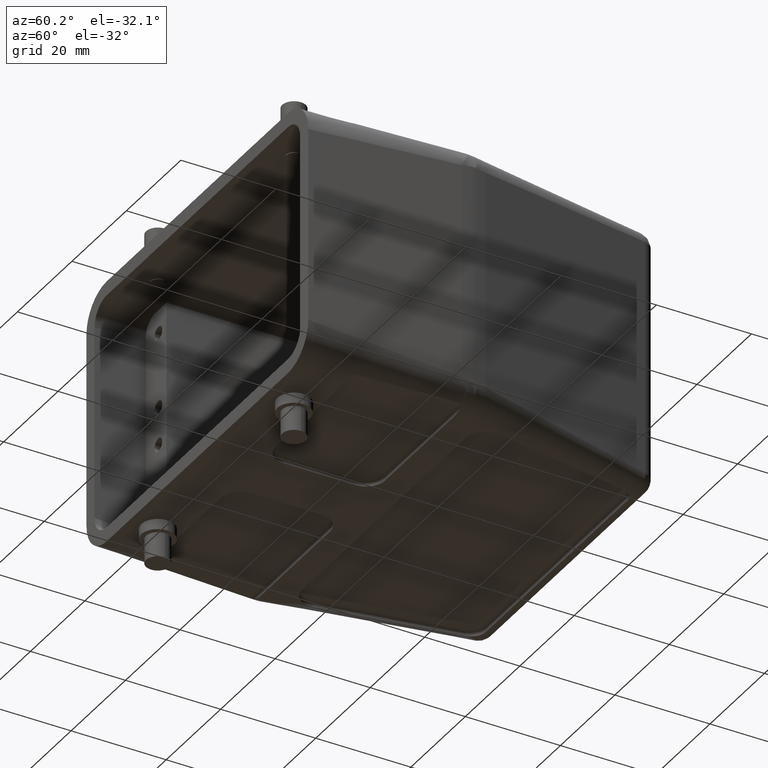
[diagram: clean part render]
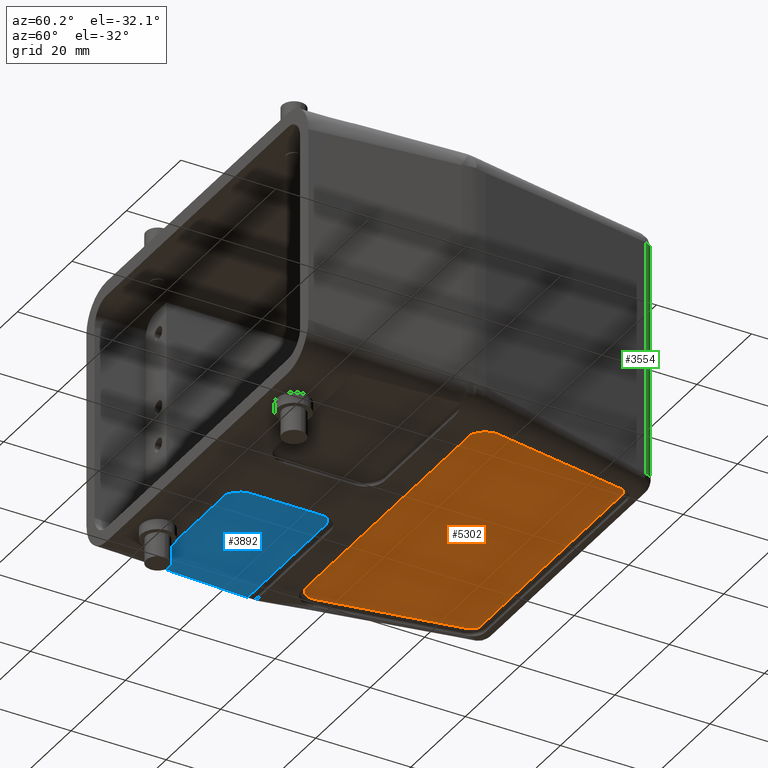
[diagram: same view with three faces highlighted in distinct colors, each labeled with its STEP entity id]
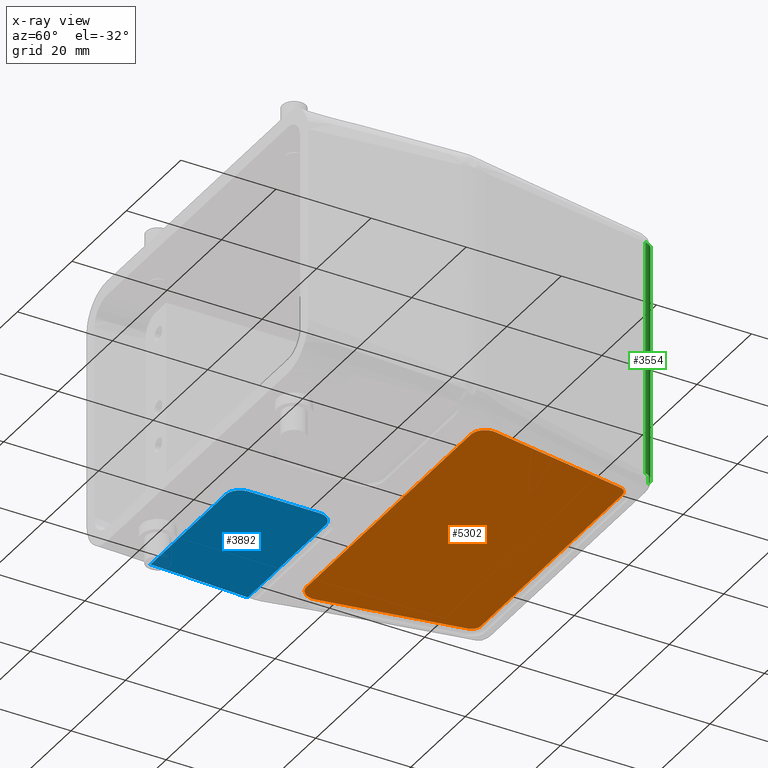
[diagram: x-ray of the same camera — body ghosted, the three highlighted faces saturated]
A machine part, auxiliary view with three faces highlighted in distinct colors.
The next image is the same camera in x-ray (body ghosted, the three faces saturated) — at least one of them is partly hidden behind the body in this view.
Their STEP definitions:

[orange] entity #5302 — the highlighted planar face has unit normal (0, 0, 1).
#38=DIRECTION('',(-1.E0,0.E0,0.E0));
#39=VECTOR('',#38,5.194844557922E1);
#40=CARTESIAN_POINT('',(2.597422278961E1,3.525E1,-2.7E1));
#41=LINE('',#40,#39);
#1903=CARTESIAN_POINT('',(2.597422278961E1,3.325E1,-2.7E1));
#1904=DIRECTION('',(0.E0,0.E0,1.E0));
#1905=DIRECTION('',(9.846114241348E-1,1.747579567950E-1,0.E0));
#1906=AXIS2_PLACEMENT_3D('',#1903,#1904,#1905);
#1908=CARTESIAN_POINT('',(-2.597422278961E1,3.325E1,-2.7E1));
#1909=DIRECTION('',(0.E0,0.E0,1.E0));
#1910=DIRECTION('',(0.E0,1.E0,0.E0));
#1911=AXIS2_PLACEMENT_3D('',#1908,#1909,#1910);
#1913=DIRECTION('',(-1.747579567951E-1,-9.846114241348E-1,0.E0));
#1914=VECTOR('',#1913,2.952966147914E1);
#1915=CARTESIAN_POINT('',(-2.794344563781E1,3.359951591357E1,
-2.699999999997E1));
#1916=LINE('',#1915,#1914);
#1917=CARTESIAN_POINT('',(-3.015015467035E1,4.E0,-2.7E1));
#1918=DIRECTION('',(0.E0,0.E0,1.E0));
#1919=DIRECTION('',(-9.846114241353E-1,1.747579567924E-1,0.E0));
#1920=AXIS2_PLACEMENT_3D('',#1917,#1918,#1919);
#1922=CARTESIAN_POINT('',(3.015015467035E1,4.E0,-2.7E1));
#1923=DIRECTION('',(0.E0,0.E0,1.E0));
#1924=DIRECTION('',(0.E0,-1.E0,0.E0));
#1925=AXIS2_PLACEMENT_3D('',#1922,#1923,#1924);
#1927=DIRECTION('',(-1.747579567916E-1,9.846114241354E-1,0.E0));
#1928=VECTOR('',#1927,2.952966147914E1);
#1929=CARTESIAN_POINT('',(3.310398894273E1,4.524273870373E0,-2.699999999998E1));
#1930=LINE('',#1929,#1928);
#1955=DIRECTION('',(1.E0,0.E0,0.E0));
#1956=VECTOR('',#1955,6.030030934070E1);
#1957=CARTESIAN_POINT('',(-3.015015467035E1,1.E0,-2.7E1));
#1958=LINE('',#1957,#1956);
#2332=CARTESIAN_POINT('',(2.794344563788E1,3.359951591359E1,-2.7E1));
#2333=CARTESIAN_POINT('',(2.597422278961E1,3.525E1,-2.7E1));
#2334=VERTEX_POINT('',#2332);
#2335=VERTEX_POINT('',#2333);
#2336=CARTESIAN_POINT('',(3.310398894273E1,4.524273870373E0,-2.699999999998E1));
#2337=VERTEX_POINT('',#2336);
#2338=CARTESIAN_POINT('',(3.015015467035E1,9.999999999990E-1,-2.7E1));
#2339=VERTEX_POINT('',#2338);
#2340=CARTESIAN_POINT('',(-3.015015467035E1,1.E0,-2.7E1));
#2341=VERTEX_POINT('',#2340);
#2342=CARTESIAN_POINT('',(-3.310398894276E1,4.524273870377E0,-2.7E1));
#2343=VERTEX_POINT('',#2342);
#2344=CARTESIAN_POINT('',(-2.794344563781E1,3.359951591357E1,
-2.699999999997E1));
#2345=VERTEX_POINT('',#2344);
#2346=CARTESIAN_POINT('',(-2.597422278961E1,3.525E1,-2.7E1));
#2347=VERTEX_POINT('',#2346);
#5283=CARTESIAN_POINT('',(0.E0,2.615E1,-2.7E1));
#5284=DIRECTION('',(0.E0,0.E0,1.E0));
#5285=DIRECTION('',(-1.E0,0.E0,0.E0));
#5286=AXIS2_PLACEMENT_3D('',#5283,#5284,#5285);
#5287=PLANE('',#5286);
#5288=ORIENTED_EDGE('',*,*,#2566,.T.);
#5289=ORIENTED_EDGE('',*,*,#2581,.T.);
#5291=ORIENTED_EDGE('',*,*,#5290,.T.);
#5293=ORIENTED_EDGE('',*,*,#5292,.T.);
#5295=ORIENTED_EDGE('',*,*,#5294,.T.);
#5297=ORIENTED_EDGE('',*,*,#5296,.T.);
#5298=ORIENTED_EDGE('',*,*,#5276,.T.);
#5299=ORIENTED_EDGE('',*,*,#2551,.T.);
#5300=EDGE_LOOP('',(#5288,#5289,#5291,#5293,#5295,#5297,#5298,#5299));
#5301=FACE_OUTER_BOUND('',#5300,.F.);
#5302=ADVANCED_FACE('',(#5301),#5287,.F.);
#1907=CIRCLE('',#1906,2.000000000001E0);
#1912=CIRCLE('',#1911,2.000000000003E0);
#1921=CIRCLE('',#1920,3.E0);
#1926=CIRCLE('',#1925,3.000000000001E0);
#2551=EDGE_CURVE('',#2337,#2334,#1930,.T.);
#2566=EDGE_CURVE('',#2334,#2335,#1907,.T.);
#2581=EDGE_CURVE('',#2335,#2347,#41,.T.);
#5276=EDGE_CURVE('',#2339,#2337,#1926,.T.);
#5290=EDGE_CURVE('',#2347,#2345,#1912,.T.);
#5292=EDGE_CURVE('',#2345,#2343,#1916,.T.);
#5294=EDGE_CURVE('',#2343,#2341,#1921,.T.);
#5296=EDGE_CURVE('',#2341,#2339,#1958,.T.);

[blue] entity #3892 — the highlighted planar face has unit normal (0, 0, 1).
#1031=CARTESIAN_POINT('',(-3.864350209809E1,-6.550000000001E0,
-2.699999999998E1));
#1032=CARTESIAN_POINT('',(-3.853356949915E1,-8.840790215465E0,
-2.699999999998E1));
#1033=CARTESIAN_POINT('',(-3.830952670427E1,-1.345072676245E1,
-2.700000000001E1));
#1034=CARTESIAN_POINT('',(-3.796179668021E1,-2.045135043919E1,
-2.700000000001E1));
#1035=CARTESIAN_POINT('',(-3.772273925070E1,-2.517438693915E1,
-2.699999999998E1));
#1036=CARTESIAN_POINT('',(-3.760149286989E1,-2.755E1,-2.699999999998E1));
#1038=CARTESIAN_POINT('',(-1.E1,-2.455E1,-2.7E1));
#1039=DIRECTION('',(0.E0,0.E0,1.E0));
#1040=DIRECTION('',(0.E0,-1.E0,0.E0));
#1041=AXIS2_PLACEMENT_3D('',#1038,#1039,#1040);
#1043=CARTESIAN_POINT('',(-1.E1,-9.55E0,-2.7E1));
#1044=DIRECTION('',(0.E0,0.E0,1.E0));
#1045=DIRECTION('',(1.E0,0.E0,0.E0));
#1046=AXIS2_PLACEMENT_3D('',#1043,#1044,#1045);
#1048=DIRECTION('',(-1.E0,-4.207788947754E-14,6.965642661926E-13));
#1049=VECTOR('',#1048,2.864350209809E1);
#1050=CARTESIAN_POINT('',(-1.E1,-6.55E0,-2.7E1));
#1051=LINE('',#1050,#1049);
#1079=DIRECTION('',(-1.206738412899E-13,1.E0,0.E0));
#1080=VECTOR('',#1079,1.5E1);
#1081=CARTESIAN_POINT('',(-6.999999999998E0,-2.455E1,-2.7E1));
#1082=LINE('',#1081,#1080);
#1101=DIRECTION('',(1.E0,2.020818403559E-14,-8.791203628220E-13));
#1102=VECTOR('',#1101,2.760149286989E1);
#1103=CARTESIAN_POINT('',(-3.760149286989E1,-2.755E1,-2.699999999998E1));
#1104=LINE('',#1103,#1102);
#2320=CARTESIAN_POINT('',(-1.E1,-6.55E0,-2.7E1));
#2321=CARTESIAN_POINT('',(-3.864350209809E1,-6.550000000001E0,
-2.699999999998E1));
#2322=VERTEX_POINT('',#2320);
#2323=VERTEX_POINT('',#2321);
#2324=CARTESIAN_POINT('',(-7.000000000001E0,-9.55E0,-2.7E1));
#2325=VERTEX_POINT('',#2324);
#2326=CARTESIAN_POINT('',(-6.999999999998E0,-2.455E1,-2.7E1));
#2327=VERTEX_POINT('',#2326);
#2328=CARTESIAN_POINT('',(-1.E1,-2.755E1,-2.7E1));
#2329=VERTEX_POINT('',#2328);
#2330=CARTESIAN_POINT('',(-3.760149286989E1,-2.755E1,-2.699999999998E1));
#2331=VERTEX_POINT('',#2330);
#3874=CARTESIAN_POINT('',(-2.282175104902E1,-1.705E1,-2.7E1));
#3875=DIRECTION('',(0.E0,0.E0,1.E0));
#3876=DIRECTION('',(1.E0,0.E0,0.E0));
#3877=AXIS2_PLACEMENT_3D('',#3874,#3875,#3876);
#3878=PLANE('',#3877);
#3880=ORIENTED_EDGE('',*,*,#3879,.T.);
#3881=ORIENTED_EDGE('',*,*,#3859,.T.);
#3883=ORIENTED_EDGE('',*,*,#3882,.T.);
#3885=ORIENTED_EDGE('',*,*,#3884,.T.);
#3887=ORIENTED_EDGE('',*,*,#3886,.T.);
#3889=ORIENTED_EDGE('',*,*,#3888,.T.);
#3890=EDGE_LOOP('',(#3880,#3881,#3883,#3885,#3887,#3889));
#3891=FACE_OUTER_BOUND('',#3890,.F.);
#3892=ADVANCED_FACE('',(#3891),#3878,.F.);
#1037=B_SPLINE_CURVE_WITH_KNOTS('',3,(#1031,#1032,#1033,#1034,#1035,#1036),
.UNSPECIFIED.,.F.,.F.,(4,1,1,4),(0.E0,3.333333333333E-1,6.666666666667E-1,1.E0),
.UNSPECIFIED.);
#1042=CIRCLE('',#1041,3.000000000005E0);
#1047=CIRCLE('',#1046,2.999999999999E0);
#3859=EDGE_CURVE('',#2323,#2331,#1037,.T.);
#3879=EDGE_CURVE('',#2322,#2323,#1051,.T.);
#3882=EDGE_CURVE('',#2331,#2329,#1104,.T.);
#3884=EDGE_CURVE('',#2329,#2327,#1042,.T.);
#3886=EDGE_CURVE('',#2327,#2325,#1082,.T.);
#3888=EDGE_CURVE('',#2325,#2322,#1047,.T.);

[green] entity #3554 — the highlighted cylindrical surface (edge-blend (fillet) strip) has radius 3 mm, axis along (0, 0, -1).
#534=CARTESIAN_POINT('',(3.152534919274E1,3.690613437086E1,2.489223606302E1));
#760=CARTESIAN_POINT('',(2.859798046171E1,3.625E1,-2.489223606302E1));
#761=DIRECTION('',(0.E0,0.E0,-1.E0));
#762=DIRECTION('',(0.E0,1.E0,0.E0));
#763=AXIS2_PLACEMENT_3D('',#760,#761,#762);
#765=DIRECTION('',(0.E0,-5.195145087847E-14,-1.E0));
#766=VECTOR('',#765,4.978447212604E1);
#767=CARTESIAN_POINT('',(2.859798046171E1,3.925E1,2.489223606302E1));
#768=LINE('',#767,#766);
#769=DIRECTION('',(0.E0,4.295985361105E-14,1.E0));
#770=VECTOR('',#769,4.978447212604E1);
#771=CARTESIAN_POINT('',(3.152534919274E1,3.690613437085E1,-2.489223606302E1));
#772=LINE('',#771,#770);
#1722=CARTESIAN_POINT('',(2.859798046171E1,3.625E1,2.489223606302E1));
#1723=DIRECTION('',(0.E0,0.E0,1.E0));
#1724=DIRECTION('',(9.757895770160E-1,2.187114569176E-1,0.E0));
#1725=AXIS2_PLACEMENT_3D('',#1722,#1723,#1724);
#2288=VERTEX_POINT('',#534);
#2355=CARTESIAN_POINT('',(3.152534919274E1,3.690613437085E1,-2.489223606302E1));
#2356=VERTEX_POINT('',#2355);
#2358=CARTESIAN_POINT('',(2.859798046171E1,3.925E1,2.489223606302E1));
#2359=CARTESIAN_POINT('',(2.859798046171E1,3.925E1,-2.489223606302E1));
#2360=VERTEX_POINT('',#2358);
#2361=VERTEX_POINT('',#2359);
#3541=CARTESIAN_POINT('',(2.859798046171E1,3.625E1,2.588792550554E1));
#3542=DIRECTION('',(0.E0,0.E0,-1.E0));
#3543=DIRECTION('',(0.E0,1.E0,0.E0));
#3544=AXIS2_PLACEMENT_3D('',#3541,#3542,#3543);
#3545=CYLINDRICAL_SURFACE('',#3544,3.E0);
#3546=ORIENTED_EDGE('',*,*,#3397,.T.);
#3547=ORIENTED_EDGE('',*,*,#3536,.T.);
#3549=ORIENTED_EDGE('',*,*,#3548,.T.);
#3551=ORIENTED_EDGE('',*,*,#3550,.T.);
#3552=EDGE_LOOP('',(#3546,#3547,#3549,#3551));
#3553=FACE_OUTER_BOUND('',#3552,.F.);
#3554=ADVANCED_FACE('',(#3553),#3545,.T.);
#764=CIRCLE('',#763,3.E0);
#1726=CIRCLE('',#1725,3.E0);
#3397=EDGE_CURVE('',#2360,#2361,#768,.T.);
#3536=EDGE_CURVE('',#2361,#2356,#764,.T.);
#3548=EDGE_CURVE('',#2356,#2288,#772,.T.);
#3550=EDGE_CURVE('',#2288,#2360,#1726,.T.);